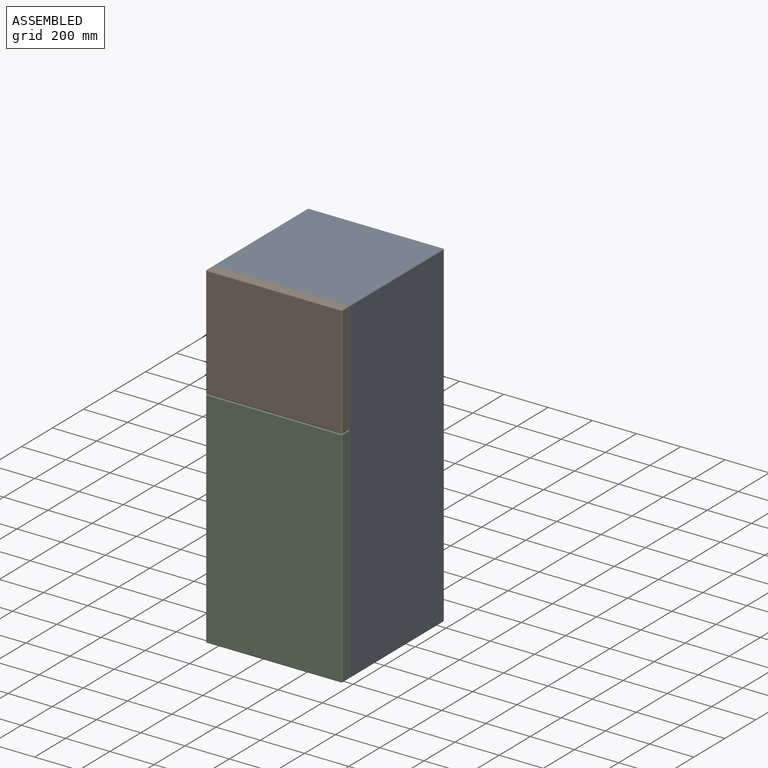
[diagram: assembled view]
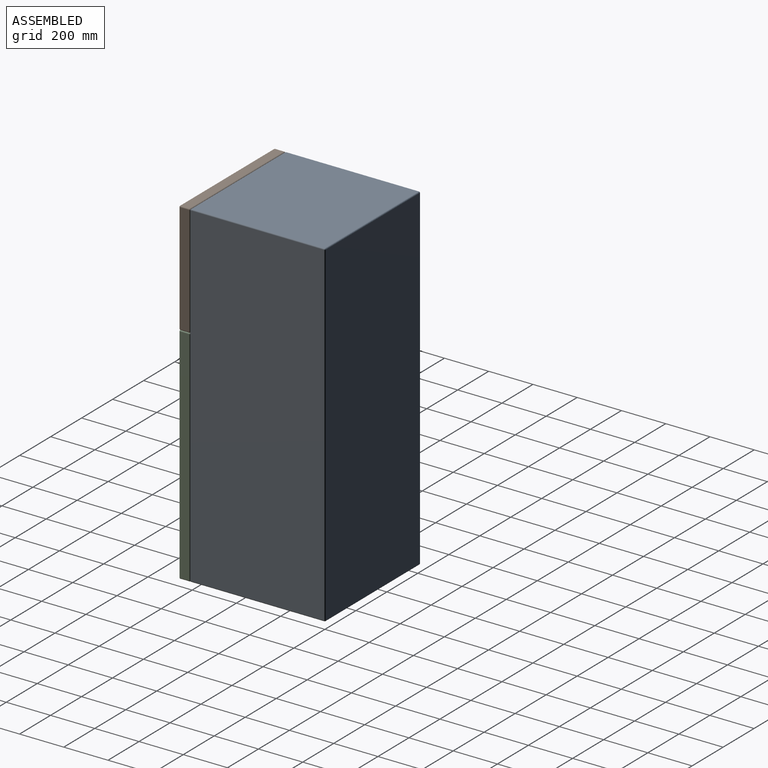
[diagram: assembled view, second angle]
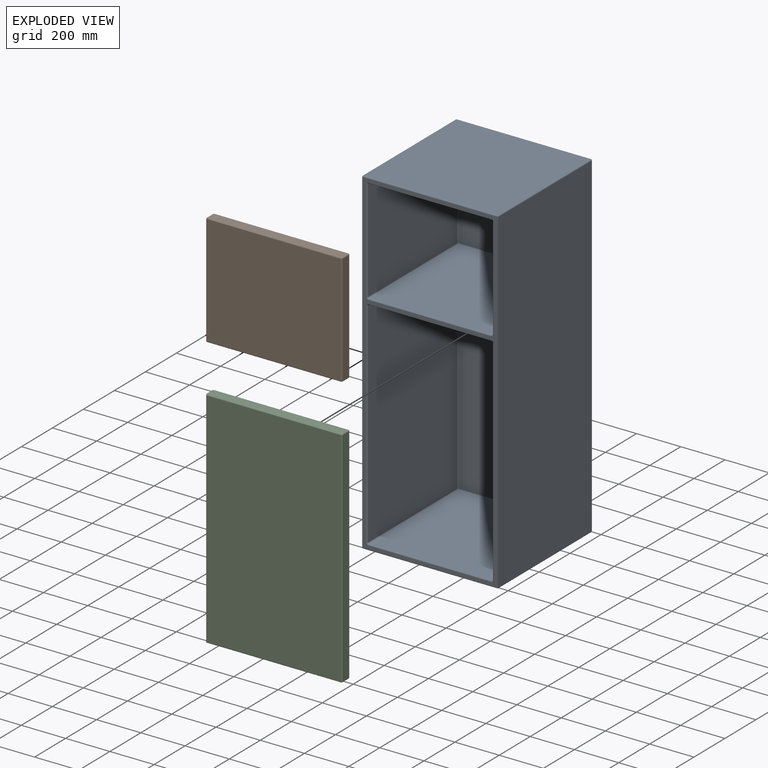
[diagram: exploded view]
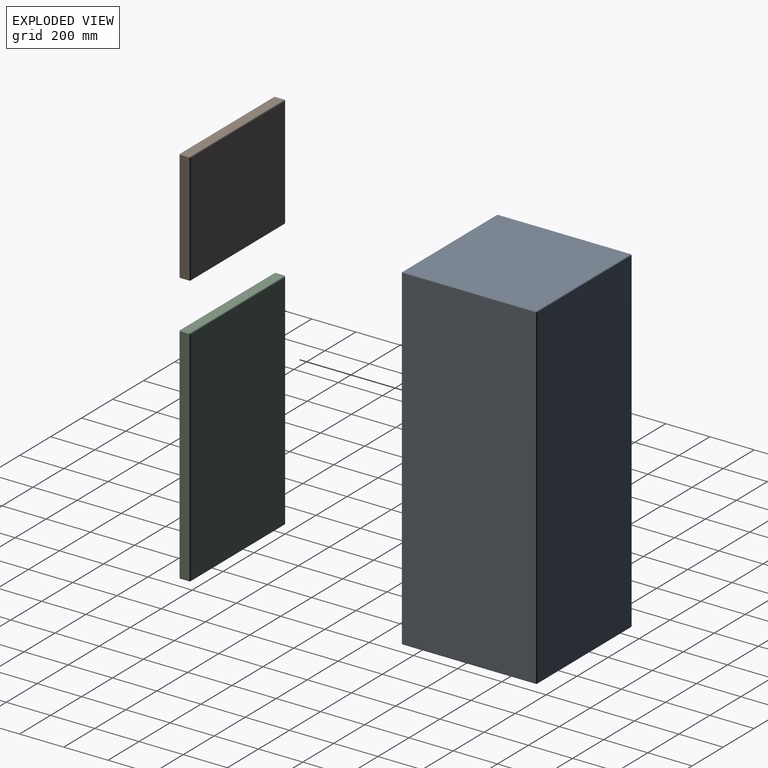
[diagram: exploded view, second angle]
ASSEMBLY  parts=3 mates=2
PART A: 73 faces, bbox 616x609.6x1524 mm
  f0: plane 1513.84x610.87mm, normal (0,-1,0), area 80312.5mm2, adj f6,f16,f17,f18,f19,f23,f24,f25
  f1: plane 967.74x554.99mm, normal (0,-1,0), area 537086mm2, adj f21,f30,f31,f35
  f2: plane 574.04x459.74mm, normal (1,0,0), area 263909.1mm2, adj f39,f40,f49,f50
  f3: plane 574.04x459.74mm, normal (-1,0,0), area 263909.1mm2, adj f42,f43,f51,f52
  f4: plane 1513.84x605.79mm, normal (0,1,0), area 917069.1mm2, adj f61,f66,f69,f72
  f5: plane 1513.84x599.44mm, normal (-1,0,0), area 907456.2mm2, adj f58,f67,f68,f72
  f6: plane 1513.84x604.52mm, normal (1,0,0), area 915146.6mm2, adj f0,f56,f60,f61
  f7: plane 605.79x599.44mm, normal (0,0,1), area 363134.8mm2, adj f56,f57,f66,f67
  f8: plane 605.79x599.44mm, normal (0,0,-1), area 363134.8mm2, adj f59,f60,f68,f69
  f9: plane 554.99x459.74mm, normal (0,-1,0), area 255151.1mm2, adj f41,f50,f51,f55
  f10: plane 967.74x574.04mm, normal (1,0,0), area 555521.5mm2, adj f24,f29,f32,f35
  f11: plane 967.74x574.04mm, normal (-1,0,0), area 555521.5mm2, adj f16,f20,f21,f22
  f12: plane 574.04x554.99mm, normal (0,0,-1), area 318586.5mm2, adj f36,f40,f41,f42
  f13: plane 574.04x554.99mm, normal (0,0,1), area 318586.5mm2, adj f22,f23,f31,f32
  f14: plane 574.04x554.99mm, normal (0,0,1), area 318586.5mm2, adj f44,f49,f52,f55
  f15: plane 574.04x554.99mm, normal (0,0,-1), area 318586.5mm2, adj f19,f20,f29,f30
  f16: cylinder r=5.08mm len=967.74mm, axis (0,0,1), area 7722.2mm2, adj f0,f11,f17,f18
  f17: torus R=10.16mm, axis (0,1,0), area 86.8mm2, adj f0,f16,f19,f20
  f18: torus R=10.16mm, axis (0,1,0), area 86.8mm2, adj f0,f16,f22,f23
  f19: cylinder r=5.08mm len=554.99mm, axis (-1,0,0), area 4428.6mm2, adj f0,f15,f17,f25
  f20: cylinder r=5.08mm len=574.04mm, axis (0,1,0), area 4580.6mm2, adj f11,f15,f17,f26
  f21: cylinder r=5.08mm len=967.74mm, axis (0,0,-1), area 7722.2mm2, adj f1,f11,f26,f27
  f22: cylinder r=5.08mm len=574.04mm, axis (0,-1,0), area 4580.6mm2, adj f11,f13,f18,f27
  f23: cylinder r=5.08mm len=554.99mm, axis (-1,0,0), area 4428.6mm2, adj f0,f13,f18,f28
  f24: cylinder r=5.08mm len=967.74mm, axis (0,0,-1), area 7722.2mm2, adj f0,f10,f25,f28
  f25: torus R=10.16mm, axis (0,1,0), area 86.8mm2, adj f0,f19,f24,f29
  f26: sphere r=5.08mm, area 40.5mm2, adj f20,f21,f30
  f27: sphere r=5.08mm, area 40.5mm2, adj f21,f22,f31
  f28: torus R=10.16mm, axis (0,1,0), area 86.8mm2, adj f0,f23,f24,f32
  f29: cylinder r=5.08mm len=574.04mm, axis (0,-1,0), area 4580.6mm2, adj f10,f15,f25,f33
  f30: cylinder r=5.08mm len=554.99mm, axis (1,0,0), area 4428.6mm2, adj f1,f15,f26,f33
  f31: cylinder r=5.08mm len=554.99mm, axis (1,0,0), area 4428.6mm2, adj f1,f13,f27,f34
  f32: cylinder r=5.08mm len=574.04mm, axis (0,1,0), area 4580.6mm2, adj f10,f13,f28,f34
  f33: sphere r=5.08mm, area 40.5mm2, adj f29,f30,f35
  f34: sphere r=5.08mm, area 40.5mm2, adj f31,f32,f35
  f35: cylinder r=5.08mm len=967.74mm, axis (0,0,1), area 7722.2mm2, adj f1,f10,f33,f34
  f36: cylinder r=5.08mm len=554.99mm, axis (1,0,0), area 4428.6mm2, adj f0,f12,f37,f38
  f37: torus R=10.16mm, axis (0,1,0), area 86.8mm2, adj f0,f36,f39,f40
  f38: torus R=10.16mm, axis (0,1,0), area 86.8mm2, adj f0,f36,f42,f43
  f39: cylinder r=5.08mm len=459.74mm, axis (0,0,-1), area 3668.6mm2, adj f0,f2,f37,f45
  f40: cylinder r=5.08mm len=574.04mm, axis (0,-1,0), area 4580.6mm2, adj f2,f12,f37,f46
  f41: cylinder r=5.08mm len=554.99mm, axis (-1,0,0), area 4428.6mm2, adj f9,f12,f46,f47
  f42: cylinder r=5.08mm len=574.04mm, axis (0,1,0), area 4580.6mm2, adj f3,f12,f38,f47
  f43: cylinder r=5.08mm len=459.74mm, axis (0,0,1), area 3668.6mm2, adj f0,f3,f38,f48
  f44: cylinder r=5.08mm len=554.99mm, axis (1,0,0), area 4428.6mm2, adj f0,f14,f45,f48
  f45: torus R=10.16mm, axis (0,1,0), area 86.8mm2, adj f0,f39,f44,f49
  f46: sphere r=5.08mm, area 40.5mm2, adj f40,f41,f50
  f47: sphere r=5.08mm, area 40.5mm2, adj f41,f42,f51
  f48: torus R=10.16mm, axis (0,1,0), area 86.8mm2, adj f0,f43,f44,f52
  f49: cylinder r=5.08mm len=574.04mm, axis (0,1,0), area 4580.6mm2, adj f2,f14,f45,f53
  f50: cylinder r=5.08mm len=459.74mm, axis (0,0,1), area 3668.6mm2, adj f2,f9,f46,f53
  f51: cylinder r=5.08mm len=459.74mm, axis (0,0,-1), area 3668.6mm2, adj f3,f9,f47,f54
  f52: cylinder r=5.08mm len=574.04mm, axis (0,-1,0), area 4580.6mm2, adj f3,f14,f48,f54
  f53: sphere r=5.08mm, area 40.5mm2, adj f49,f50,f55
  f54: sphere r=5.08mm, area 40.5mm2, adj f51,f52,f55
  f55: cylinder r=5.08mm len=554.99mm, axis (-1,0,0), area 4428.6mm2, adj f9,f14,f53,f54
  f56: cylinder r=5.08mm len=604.52mm, axis (0,-1,0), area 4809.1mm2, adj f6,f7,f57,f62
  f57: cylinder r=5.08mm len=610.87mm, axis (-1,0,0), area 4859.8mm2, adj f0,f7,f56,f63
  f58: cylinder r=5.08mm len=1513.84mm, axis (0,0,1), area 12079.9mm2, adj f0,f5,f63,f64
  f59: cylinder r=5.08mm len=610.87mm, axis (1,0,0), area 4859.8mm2, adj f0,f8,f60,f64
  f60: cylinder r=5.08mm len=604.52mm, axis (0,1,0), area 4809.1mm2, adj f6,f8,f59,f65
  f61: cylinder r=5.08mm len=1513.84mm, axis (0,0,1), area 12079.9mm2, adj f4,f6,f62,f65
  f62: sphere r=5.08mm, area 40.5mm2, adj f56,f61,f66
  f63: sphere r=5.08mm, area 40.5mm2, adj f57,f58,f67
  f64: sphere r=5.08mm, area 40.5mm2, adj f58,f59,f68
  f65: sphere r=5.08mm, area 40.5mm2, adj f60,f61,f69
  f66: cylinder r=5.08mm len=605.79mm, axis (1,0,0), area 4834mm2, adj f4,f7,f62,f70
  f67: cylinder r=5.08mm len=599.44mm, axis (0,1,0), area 4783.3mm2, adj f5,f7,f63,f70
  f68: cylinder r=5.08mm len=599.44mm, axis (0,-1,0), area 4783.3mm2, adj f5,f8,f64,f71
  f69: cylinder r=5.08mm len=605.79mm, axis (-1,0,0), area 4834mm2, adj f4,f8,f65,f71
  f70: sphere r=5.08mm, area 40.5mm2, adj f66,f67,f72
  f71: sphere r=5.08mm, area 40.5mm2, adj f68,f69,f72
  f72: cylinder r=5.08mm len=1513.84mm, axis (0,0,-1), area 12079.9mm2, adj f4,f5,f70,f71
PART B: 26 faces, bbox 616x50.8x508 mm
  f0: plane 497.84x40.64mm, normal (-1,0,0), area 20232.2mm2, adj f14,f19,f22,f25
  f1: plane 605.79x40.64mm, normal (0,0,-1), area 24619.3mm2, adj f11,f20,f21,f25
  f2: plane 497.84x40.64mm, normal (1,0,0), area 20232.2mm2, adj f6,f10,f11,f12
  f3: plane 605.79x40.64mm, normal (0,0,1), area 24619.3mm2, adj f6,f9,f13,f14
  f4: plane 605.79x497.84mm, normal (0,-1,0), area 301586.5mm2, adj f9,f10,f19,f20
  f5: plane 605.79x497.84mm, normal (0,1,0), area 301586.5mm2, adj f12,f13,f21,f22
  f6: cylinder r=5.08mm len=40.64mm, axis (0,1,0), area 324.3mm2, adj f2,f3,f7,f8
  f7: sphere r=5.08mm, area 40.5mm2, adj f6,f9,f10
  f8: sphere r=5.08mm, area 40.5mm2, adj f6,f12,f13
  f9: cylinder r=5.08mm len=605.79mm, axis (1,0,0), area 4834mm2, adj f3,f4,f7,f15
  f10: cylinder r=5.08mm len=497.84mm, axis (0,0,-1), area 3972.6mm2, adj f2,f4,f7,f16
  f11: cylinder r=5.08mm len=40.64mm, axis (0,-1,0), area 324.3mm2, adj f1,f2,f16,f17
  f12: cylinder r=5.08mm len=497.84mm, axis (0,0,1), area 3972.6mm2, adj f2,f5,f8,f17
  f13: cylinder r=5.08mm len=605.79mm, axis (-1,0,0), area 4834mm2, adj f3,f5,f8,f18
  f14: cylinder r=5.08mm len=40.64mm, axis (0,-1,0), area 324.3mm2, adj f0,f3,f15,f18
  f15: sphere r=5.08mm, area 40.5mm2, adj f9,f14,f19
  f16: sphere r=5.08mm, area 40.5mm2, adj f10,f11,f20
  f17: sphere r=5.08mm, area 40.5mm2, adj f11,f12,f21
  f18: sphere r=5.08mm, area 40.5mm2, adj f13,f14,f22
  f19: cylinder r=5.08mm len=497.84mm, axis (0,0,1), area 3972.6mm2, adj f0,f4,f15,f23
  f20: cylinder r=5.08mm len=605.79mm, axis (-1,0,0), area 4834mm2, adj f1,f4,f16,f23
  f21: cylinder r=5.08mm len=605.79mm, axis (1,0,0), area 4834mm2, adj f1,f5,f17,f24
  f22: cylinder r=5.08mm len=497.84mm, axis (0,0,-1), area 3972.6mm2, adj f0,f5,f18,f24
  f23: sphere r=5.08mm, area 40.5mm2, adj f19,f20,f25
  f24: sphere r=5.08mm, area 40.5mm2, adj f21,f22,f25
  f25: cylinder r=5.08mm len=40.64mm, axis (0,1,0), area 324.3mm2, adj f0,f1,f23,f24
PART C: 20 faces, bbox 616x50.8x1016 mm
  f0: plane 610.87x40.64mm, normal (0,0,1), area 24825.8mm2, adj f1,f6,f11,f16
  f1: plane 1016x40.64mm, normal (-1,0,0), area 41290.2mm2, adj f0,f2,f7,f17
  f2: plane 610.87x40.64mm, normal (0,0,-1), area 24825.8mm2, adj f1,f9,f14,f18
  f3: plane 1005.84x40.64mm, normal (1,0,0), area 40877.3mm2, adj f10,f11,f13,f14
  f4: plane 1005.84x605.79mm, normal (0,-1,0), area 609327.8mm2, adj f6,f7,f9,f10
  f5: plane 1005.84x605.79mm, normal (0,1,0), area 609327.8mm2, adj f13,f16,f17,f18
  f6: cylinder r=5.08mm len=610.87mm, axis (1,0,0), area 4859.8mm2, adj f0,f4,f7,f8
  f7: cylinder r=5.08mm len=1016mm, axis (0,0,1), area 8077.9mm2, adj f1,f4,f6,f9
  f8: sphere r=5.08mm, area 40.5mm2, adj f6,f10,f11
  f9: cylinder r=5.08mm len=610.87mm, axis (-1,0,0), area 4859.8mm2, adj f2,f4,f7,f12
  f10: cylinder r=5.08mm len=1005.84mm, axis (0,0,-1), area 8026.2mm2, adj f3,f4,f8,f12
  f11: cylinder r=5.08mm len=40.64mm, axis (0,1,0), area 324.3mm2, adj f0,f3,f8,f15
  f12: sphere r=5.08mm, area 40.5mm2, adj f9,f10,f14
  f13: cylinder r=5.08mm len=1005.84mm, axis (0,0,1), area 8026.2mm2, adj f3,f5,f15,f19
  f14: cylinder r=5.08mm len=40.64mm, axis (0,-1,0), area 324.3mm2, adj f2,f3,f12,f19
  f15: sphere r=5.08mm, area 40.5mm2, adj f11,f13,f16
  f16: cylinder r=5.08mm len=610.87mm, axis (-1,0,0), area 4859.8mm2, adj f0,f5,f15,f17
  f17: cylinder r=5.08mm len=1016mm, axis (0,0,-1), area 8077.9mm2, adj f1,f5,f16,f18
  f18: cylinder r=5.08mm len=610.87mm, axis (1,0,0), area 4859.8mm2, adj f2,f5,f17,f19
  f19: sphere r=5.08mm, area 40.5mm2, adj f13,f14,f18
PLACE A t=(-622.08,-12.83,-52.02)mm fixed
PLACE B t=(-622.08,-12.83,-52.02)mm
PLACE C t=(-622.08,-12.83,-52.02)mm
MATE fastened C.f5 <-> A.f68  axis (0,1,0) through (-617,-12.83,-46.94)mm
MATE fastened A.f67 <-> B.f14  axis (0,-1,0) through (-617,-12.83,1466.9)mm
